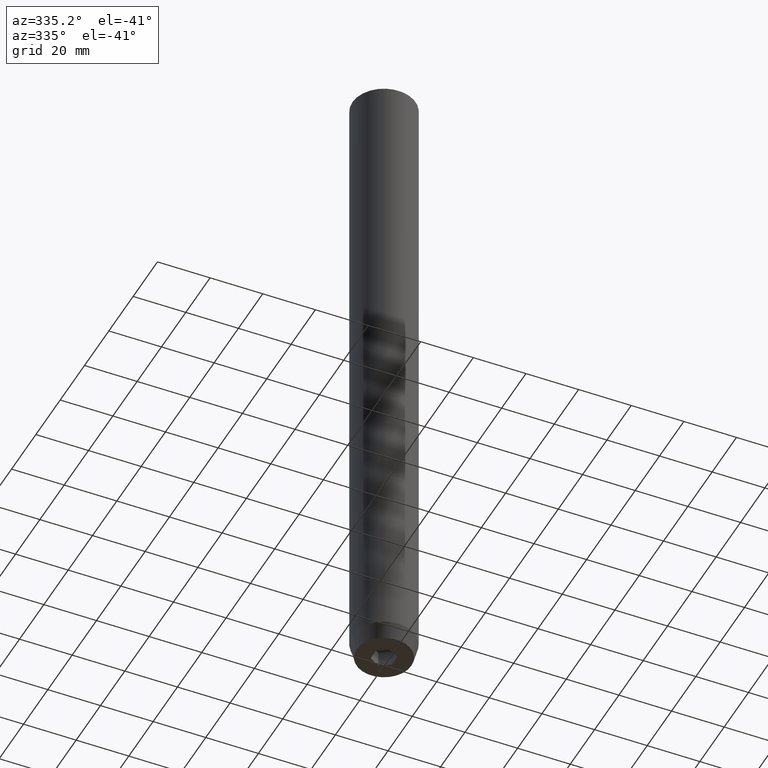
[diagram: clean part render]
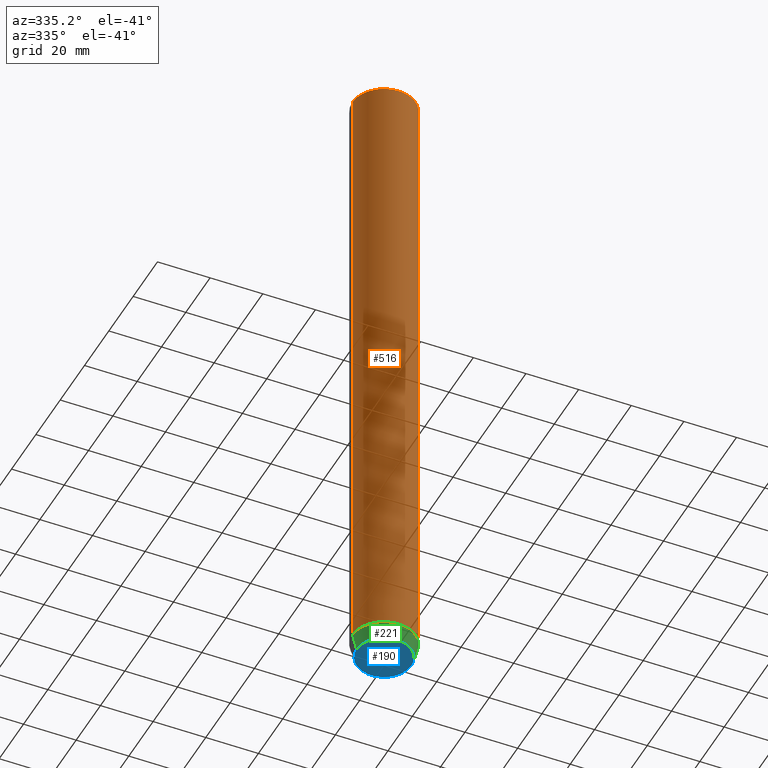
[diagram: same view with three faces highlighted in distinct colors, each labeled with its STEP entity id]
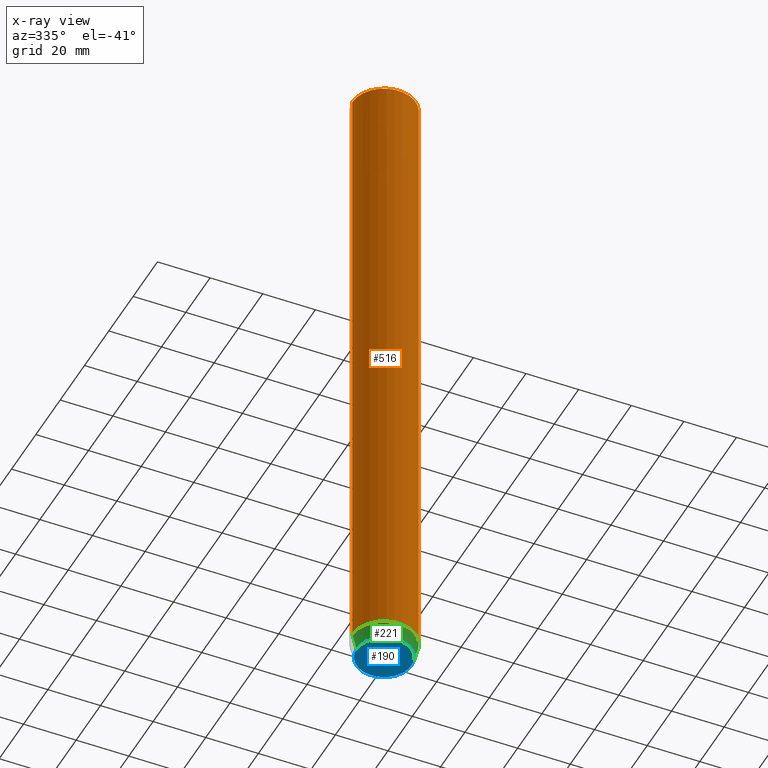
[diagram: x-ray of the same camera — body ghosted, the three highlighted faces saturated]
A machine part, auxiliary view with three faces highlighted in distinct colors.
The next image is the same camera in x-ray (body ghosted, the three faces saturated) — at least one of them is partly hidden behind the body in this view.
Their STEP definitions:

[orange] entity #516 — the highlighted cylindrical surface (edge-blend (fillet) strip) has radius 12 mm, axis along (-0, -0, 1).
#9 = DIRECTION ( 'NONE',  ( 1.000000000000000000, 0.000000000000000000, 0.000000000000000000 ) ) ;
#10 = LINE ( 'NONE', #543, #334 ) ;
#27 = VERTEX_POINT ( 'NONE', #374 ) ;
#52 = DIRECTION ( 'NONE',  ( -0.000000000000000000, -0.000000000000000000, 1.000000000000000000 ) ) ;
#60 = DIRECTION ( 'NONE',  ( -0.000000000000000000, -0.000000000000000000, 1.000000000000000000 ) ) ;
#76 = ORIENTED_EDGE ( 'NONE', *, *, #518, .T. ) ;
#110 = FACE_OUTER_BOUND ( 'NONE', #606, .T. ) ;
#134 = DIRECTION ( 'NONE',  ( 1.000000000000000000, 0.000000000000000000, 0.000000000000000000 ) ) ;
#164 = ORIENTED_EDGE ( 'NONE', *, *, #319, .T. ) ;
#169 = VECTOR ( 'NONE', #553, 1000.000000000000000 ) ;
#172 = ORIENTED_EDGE ( 'NONE', *, *, #500, .F. ) ;
#202 = CYLINDRICAL_SURFACE ( 'NONE', #581, 12.00000000000000000 ) ;
#218 = AXIS2_PLACEMENT_3D ( 'NONE', #360, #52, #9 ) ;
#223 = ORIENTED_EDGE ( 'NONE', *, *, #239, .T. ) ;
#226 = CARTESIAN_POINT ( 'NONE',  ( 0.000000000000000000, 0.000000000000000000, -0.5000000000000056621 ) ) ;
#239 = EDGE_CURVE ( 'NONE', #564, #362, #293, .T. ) ;
#262 = VERTEX_POINT ( 'NONE', #639 ) ;
#293 = CIRCLE ( 'NONE', #218, 12.00000000000000000 ) ;
#302 = CARTESIAN_POINT ( 'NONE',  ( 12.00000000000000000, 0.000000000000000000, -244.0000000000000000 ) ) ;
#303 = CIRCLE ( 'NONE', #372, 12.00000000000000000 ) ;
#304 = CARTESIAN_POINT ( 'NONE',  ( 0.000000000000000000, 0.000000000000000000, 0.000000000000000000 ) ) ;
#319 = EDGE_CURVE ( 'NONE', #27, #262, #303, .T. ) ;
#334 = VECTOR ( 'NONE', #635, 1000.000000000000000 ) ;
#360 = CARTESIAN_POINT ( 'NONE',  ( 0.000000000000000000, 0.000000000000000000, -244.0000000000000000 ) ) ;
#362 = VERTEX_POINT ( 'NONE', #302 ) ;
#372 = AXIS2_PLACEMENT_3D ( 'NONE', #226, #573, #134 ) ;
#374 = CARTESIAN_POINT ( 'NONE',  ( 12.00000000000000000, 0.000000000000000000, -0.5000000000000056621 ) ) ;
#440 = DIRECTION ( 'NONE',  ( 1.000000000000000000, 0.000000000000000000, 0.000000000000000000 ) ) ;
#454 = CARTESIAN_POINT ( 'NONE',  ( -12.00000000000000000, 1.469576158976823947E-15, 0.000000000000000000 ) ) ;
#500 = EDGE_CURVE ( 'NONE', #564, #262, #546, .T. ) ;
#516 = ADVANCED_FACE ( 'NONE', ( #110 ), #202, .T. ) ;
#518 = EDGE_CURVE ( 'NONE', #362, #27, #10, .T. ) ;
#543 = CARTESIAN_POINT ( 'NONE',  ( 12.00000000000000000, 0.000000000000000000, 0.000000000000000000 ) ) ;
#546 = LINE ( 'NONE', #454, #169 ) ;
#553 = DIRECTION ( 'NONE',  ( -0.000000000000000000, -0.000000000000000000, 1.000000000000000000 ) ) ;
#564 = VERTEX_POINT ( 'NONE', #566 ) ;
#566 = CARTESIAN_POINT ( 'NONE',  ( -12.00000000000000000, 1.469576158976823947E-15, -244.0000000000000000 ) ) ;
#573 = DIRECTION ( 'NONE',  ( 0.000000000000000000, 0.000000000000000000, -1.000000000000000000 ) ) ;
#581 = AXIS2_PLACEMENT_3D ( 'NONE', #304, #60, #440 ) ;
#606 = EDGE_LOOP ( 'NONE', ( #172, #223, #76, #164 ) ) ;
#635 = DIRECTION ( 'NONE',  ( -0.000000000000000000, -0.000000000000000000, 1.000000000000000000 ) ) ;
#639 = CARTESIAN_POINT ( 'NONE',  ( -12.00000000000000000, 1.469576158976823947E-15, -0.5000000000000056621 ) ) ;

[blue] entity #190 — the highlighted planar face has unit normal (0, 0, -1).
#20 = CARTESIAN_POINT ( 'NONE',  ( 4.000000000000000000, -2.309401076758503368, -250.0000000000000000 ) ) ;
#22 = DIRECTION ( 'NONE',  ( 1.000000000000000000, 0.000000000000000000, 0.000000000000000000 ) ) ;
#23 = ORIENTED_EDGE ( 'NONE', *, *, #633, .F. ) ;
#32 = CARTESIAN_POINT ( 'NONE',  ( 4.000000000000000000, 2.309401076758504257, -250.0000000000000000 ) ) ;
#35 = DIRECTION ( 'NONE',  ( 1.000000000000000000, 0.000000000000000000, 0.000000000000000000 ) ) ;
#46 = DIRECTION ( 'NONE',  ( -0.000000000000000000, -0.000000000000000000, 1.000000000000000000 ) ) ;
#47 = AXIS2_PLACEMENT_3D ( 'NONE', #540, #57, #195 ) ;
#49 = VECTOR ( 'NONE', #343, 999.9999999999998863 ) ;
#53 = LINE ( 'NONE', #116, #66 ) ;
#54 = CARTESIAN_POINT ( 'NONE',  ( -4.000000000000000888, 1.502314598737159623E-15, -250.0000000000000000 ) ) ;
#55 = CIRCLE ( 'NONE', #412, 10.39230484541325872 ) ;
#57 = DIRECTION ( 'NONE',  ( 0.000000000000000000, 0.000000000000000000, -1.000000000000000000 ) ) ;
#64 = FACE_OUTER_BOUND ( 'NONE', #627, .T. ) ;
#66 = VECTOR ( 'NONE', #260, 999.9999999999998863 ) ;
#74 = CARTESIAN_POINT ( 'NONE',  ( -4.000000000000000000, 2.309401076758504257, -250.0000000000000000 ) ) ;
#84 = EDGE_LOOP ( 'NONE', ( #559, #286, #570, #23, #530, #233 ) ) ;
#104 = CARTESIAN_POINT ( 'NONE',  ( -4.000000000000001776, -2.309401076758503368, -250.0000000000000000 ) ) ;
#116 = CARTESIAN_POINT ( 'NONE',  ( 2.000000000000000000, 3.464101615137755275, -250.0000000000000000 ) ) ;
#157 = LINE ( 'NONE', #354, #49 ) ;
#175 = DIRECTION ( 'NONE',  ( 0.000000000000000000, -1.000000000000000000, 0.000000000000000000 ) ) ;
#190 = ADVANCED_FACE ( 'NONE', ( #301, #64 ), #506, .T. ) ;
#195 = DIRECTION ( 'NONE',  ( -1.000000000000000000, 0.000000000000000000, -0.000000000000000000 ) ) ;
#206 = VERTEX_POINT ( 'NONE', #448 ) ;
#219 = CARTESIAN_POINT ( 'NONE',  ( 0.000000000000000000, 0.000000000000000000, -250.0000000000000000 ) ) ;
#220 = ORIENTED_EDGE ( 'NONE', *, *, #316, .F. ) ;
#222 = LINE ( 'NONE', #568, #265 ) ;
#225 = VERTEX_POINT ( 'NONE', #402 ) ;
#233 = ORIENTED_EDGE ( 'NONE', *, *, #251, .F. ) ;
#251 = EDGE_CURVE ( 'NONE', #515, #417, #53, .T. ) ;
#257 = DIRECTION ( 'NONE',  ( -0.8660254037844387076, 0.4999999999999997224, 0.000000000000000000 ) ) ;
#260 = DIRECTION ( 'NONE',  ( 0.8660254037844387076, -0.4999999999999999445, 0.000000000000000000 ) ) ;
#265 = VECTOR ( 'NONE', #418, 1000.000000000000227 ) ;
#273 = VECTOR ( 'NONE', #401, 1000.000000000000000 ) ;
#286 = ORIENTED_EDGE ( 'NONE', *, *, #407, .F. ) ;
#300 = LINE ( 'NONE', #54, #273 ) ;
#301 = FACE_BOUND ( 'NONE', #84, .T. ) ;
#313 = CARTESIAN_POINT ( 'NONE',  ( 10.39230484541325872, 0.000000000000000000, -250.0000000000000000 ) ) ;
#316 = EDGE_CURVE ( 'NONE', #561, #206, #55, .T. ) ;
#343 = DIRECTION ( 'NONE',  ( 0.8660254037844387076, 0.4999999999999999445, 0.000000000000000000 ) ) ;
#354 = CARTESIAN_POINT ( 'NONE',  ( -2.000000000000000000, 3.464101615137755275, -250.0000000000000000 ) ) ;
#359 = AXIS2_PLACEMENT_3D ( 'NONE', #219, #469, #22 ) ;
#367 = LINE ( 'NONE', #513, #631 ) ;
#395 = VECTOR ( 'NONE', #257, 1000.000000000000114 ) ;
#397 = CARTESIAN_POINT ( 'NONE',  ( -1.999999999999999112, -3.464101615137755275, -250.0000000000000000 ) ) ;
#401 = DIRECTION ( 'NONE',  ( 3.755786496842898071E-16, 1.000000000000000000, 0.000000000000000000 ) ) ;
#402 = CARTESIAN_POINT ( 'NONE',  ( 8.673617379884035472E-16, -4.618802153517004960, -250.0000000000000000 ) ) ;
#407 = EDGE_CURVE ( 'NONE', #534, #619, #300, .T. ) ;
#412 = AXIS2_PLACEMENT_3D ( 'NONE', #486, #46, #35 ) ;
#417 = VERTEX_POINT ( 'NONE', #32 ) ;
#418 = DIRECTION ( 'NONE',  ( -0.8660254037844385966, -0.4999999999999998890, 0.000000000000000000 ) ) ;
#419 = VERTEX_POINT ( 'NONE', #20 ) ;
#448 = CARTESIAN_POINT ( 'NONE',  ( -10.39230484541325872, 1.371133222723355777E-15, -250.0000000000000000 ) ) ;
#450 = CARTESIAN_POINT ( 'NONE',  ( 4.336808689942017736E-16, 4.618802153517006737, -250.0000000000000000 ) ) ;
#461 = EDGE_CURVE ( 'NONE', #225, #534, #496, .T. ) ;
#469 = DIRECTION ( 'NONE',  ( -0.000000000000000000, -0.000000000000000000, 1.000000000000000000 ) ) ;
#485 = ORIENTED_EDGE ( 'NONE', *, *, #594, .F. ) ;
#486 = CARTESIAN_POINT ( 'NONE',  ( 0.000000000000000000, 0.000000000000000000, -250.0000000000000000 ) ) ;
#487 = EDGE_CURVE ( 'NONE', #619, #515, #157, .T. ) ;
#496 = LINE ( 'NONE', #397, #395 ) ;
#506 = PLANE ( 'NONE',  #47 ) ;
#511 = CIRCLE ( 'NONE', #359, 10.39230484541325872 ) ;
#513 = CARTESIAN_POINT ( 'NONE',  ( 4.000000000000000000, 0.000000000000000000, -250.0000000000000000 ) ) ;
#515 = VERTEX_POINT ( 'NONE', #450 ) ;
#530 = ORIENTED_EDGE ( 'NONE', *, *, #616, .F. ) ;
#534 = VERTEX_POINT ( 'NONE', #104 ) ;
#540 = CARTESIAN_POINT ( 'NONE',  ( 0.000000000000000000, 10.39230484541325872, -250.0000000000000000 ) ) ;
#559 = ORIENTED_EDGE ( 'NONE', *, *, #487, .F. ) ;
#561 = VERTEX_POINT ( 'NONE', #313 ) ;
#568 = CARTESIAN_POINT ( 'NONE',  ( 1.999999999999999556, -3.464101615137754386, -250.0000000000000000 ) ) ;
#570 = ORIENTED_EDGE ( 'NONE', *, *, #461, .F. ) ;
#594 = EDGE_CURVE ( 'NONE', #206, #561, #511, .T. ) ;
#616 = EDGE_CURVE ( 'NONE', #417, #419, #367, .T. ) ;
#619 = VERTEX_POINT ( 'NONE', #74 ) ;
#627 = EDGE_LOOP ( 'NONE', ( #220, #485 ) ) ;
#631 = VECTOR ( 'NONE', #175, 1000.000000000000000 ) ;
#633 = EDGE_CURVE ( 'NONE', #419, #225, #222, .T. ) ;

[green] entity #221 — the highlighted conical surface has half-angle 15 deg.
#5 = VECTOR ( 'NONE', #132, 1000.000000000000000 ) ;
#6 = CARTESIAN_POINT ( 'NONE',  ( 0.000000000000000000, 0.000000000000000000, -244.0000000000000000 ) ) ;
#9 = DIRECTION ( 'NONE',  ( 1.000000000000000000, 0.000000000000000000, 0.000000000000000000 ) ) ;
#15 = DIRECTION ( 'NONE',  ( -0.2588190451025214056, 3.169619151431772953E-17, 0.9659258262890680902 ) ) ;
#22 = DIRECTION ( 'NONE',  ( 1.000000000000000000, 0.000000000000000000, 0.000000000000000000 ) ) ;
#39 = ORIENTED_EDGE ( 'NONE', *, *, #118, .T. ) ;
#52 = DIRECTION ( 'NONE',  ( -0.000000000000000000, -0.000000000000000000, 1.000000000000000000 ) ) ;
#118 = EDGE_CURVE ( 'NONE', #561, #362, #146, .T. ) ;
#119 = ORIENTED_EDGE ( 'NONE', *, *, #594, .T. ) ;
#132 = DIRECTION ( 'NONE',  ( 0.2588190451025214056, 0.000000000000000000, 0.9659258262890680902 ) ) ;
#140 = CONICAL_SURFACE ( 'NONE', #358, 12.00000000000000000, 0.2617993877991501295 ) ;
#146 = LINE ( 'NONE', #289, #5 ) ;
#206 = VERTEX_POINT ( 'NONE', #448 ) ;
#213 = EDGE_CURVE ( 'NONE', #206, #564, #492, .T. ) ;
#218 = AXIS2_PLACEMENT_3D ( 'NONE', #360, #52, #9 ) ;
#219 = CARTESIAN_POINT ( 'NONE',  ( 0.000000000000000000, 0.000000000000000000, -250.0000000000000000 ) ) ;
#221 = ADVANCED_FACE ( 'NONE', ( #400 ), #140, .T. ) ;
#236 = ORIENTED_EDGE ( 'NONE', *, *, #239, .F. ) ;
#239 = EDGE_CURVE ( 'NONE', #564, #362, #293, .T. ) ;
#256 = CARTESIAN_POINT ( 'NONE',  ( -12.00000000000000000, 1.469576158976823947E-15, -244.0000000000000000 ) ) ;
#267 = ORIENTED_EDGE ( 'NONE', *, *, #213, .F. ) ;
#289 = CARTESIAN_POINT ( 'NONE',  ( 12.00000000000000000, 0.000000000000000000, -244.0000000000000000 ) ) ;
#293 = CIRCLE ( 'NONE', #218, 12.00000000000000000 ) ;
#297 = DIRECTION ( 'NONE',  ( -0.000000000000000000, -0.000000000000000000, 1.000000000000000000 ) ) ;
#302 = CARTESIAN_POINT ( 'NONE',  ( 12.00000000000000000, 0.000000000000000000, -244.0000000000000000 ) ) ;
#313 = CARTESIAN_POINT ( 'NONE',  ( 10.39230484541325872, 0.000000000000000000, -250.0000000000000000 ) ) ;
#358 = AXIS2_PLACEMENT_3D ( 'NONE', #6, #297, #547 ) ;
#359 = AXIS2_PLACEMENT_3D ( 'NONE', #219, #469, #22 ) ;
#360 = CARTESIAN_POINT ( 'NONE',  ( 0.000000000000000000, 0.000000000000000000, -244.0000000000000000 ) ) ;
#362 = VERTEX_POINT ( 'NONE', #302 ) ;
#400 = FACE_OUTER_BOUND ( 'NONE', #463, .T. ) ;
#448 = CARTESIAN_POINT ( 'NONE',  ( -10.39230484541325872, 1.371133222723355777E-15, -250.0000000000000000 ) ) ;
#463 = EDGE_LOOP ( 'NONE', ( #267, #119, #39, #236 ) ) ;
#469 = DIRECTION ( 'NONE',  ( -0.000000000000000000, -0.000000000000000000, 1.000000000000000000 ) ) ;
#492 = LINE ( 'NONE', #256, #602 ) ;
#511 = CIRCLE ( 'NONE', #359, 10.39230484541325872 ) ;
#547 = DIRECTION ( 'NONE',  ( 1.000000000000000000, 0.000000000000000000, 0.000000000000000000 ) ) ;
#561 = VERTEX_POINT ( 'NONE', #313 ) ;
#564 = VERTEX_POINT ( 'NONE', #566 ) ;
#566 = CARTESIAN_POINT ( 'NONE',  ( -12.00000000000000000, 1.469576158976823947E-15, -244.0000000000000000 ) ) ;
#594 = EDGE_CURVE ( 'NONE', #206, #561, #511, .T. ) ;
#602 = VECTOR ( 'NONE', #15, 1000.000000000000000 ) ;